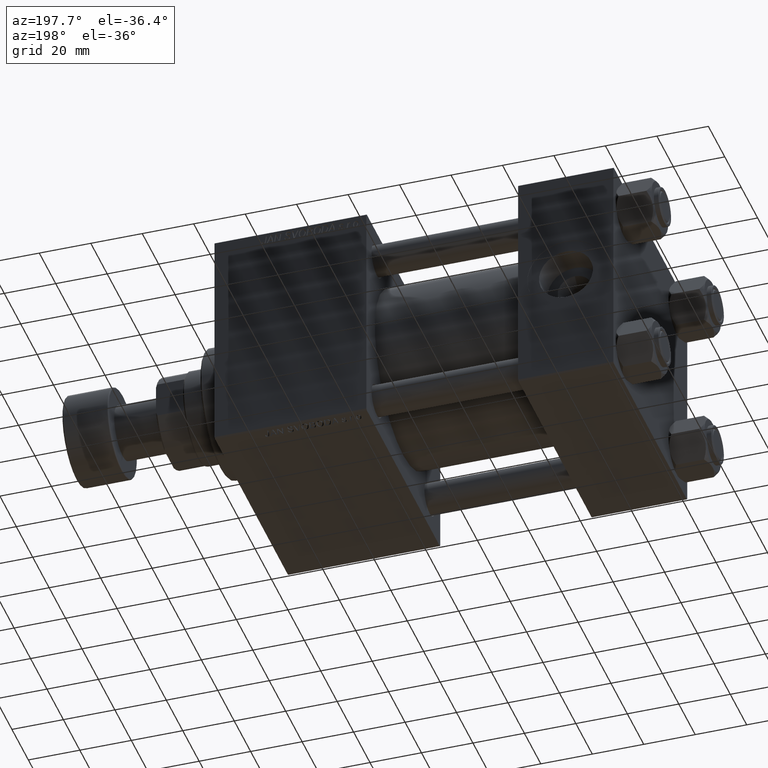
[diagram: clean part render]
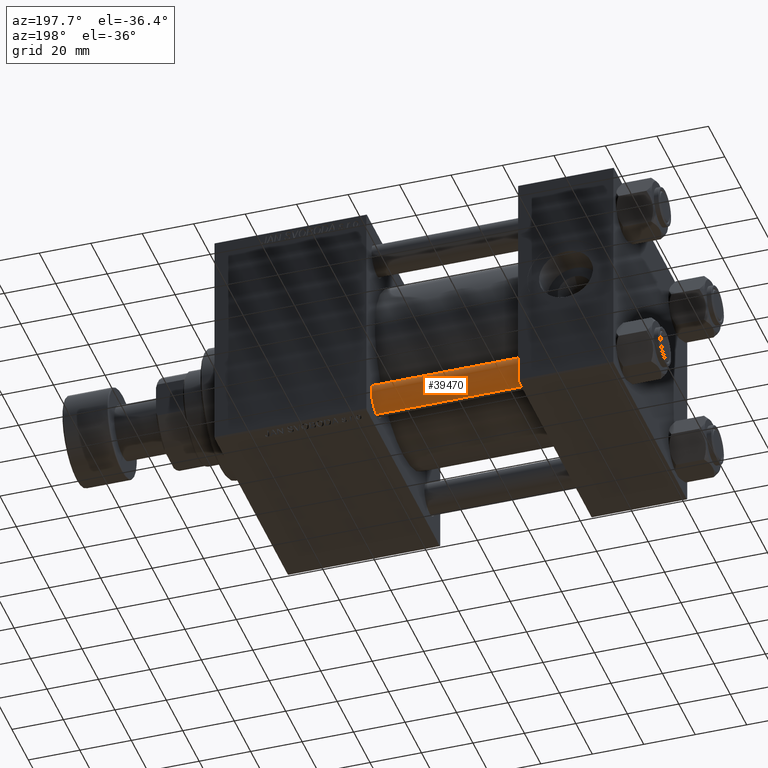
[diagram: same view with one face highlighted and labeled with its STEP entity id]
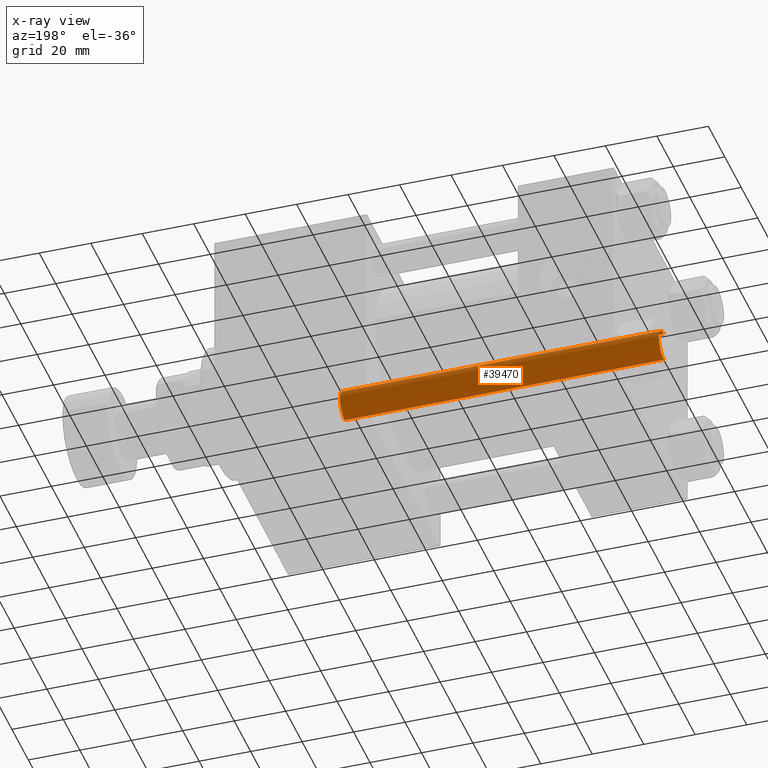
[diagram: x-ray of the same camera — body ghosted, the highlighted face saturated]
A machine part, auxiliary view. The second image highlights one B-rep face of the part: STEP entity #39470.
The next image is the same camera in x-ray: the body ghosted, the highlighted face saturated — about 0% of this face is hidden behind the body in this view.
In plain terms, the highlighted cylindrical surface (edge-blend (fillet) strip) has radius 6 mm, axis along (1, -0, -0).
Its self-contained STEP definition (entity closure, byte-faithful):
#1232 = ORIENTED_EDGE ( 'NONE', *, *, #22876, .T. ) ;
#2755 = FACE_OUTER_BOUND ( 'NONE', #5713, .T. ) ;
#3897 = ORIENTED_EDGE ( 'NONE', *, *, #37520, .F. ) ;
#4554 = DIRECTION ( 'NONE',  ( 1.000000000000000000, 0.000000000000000000, 0.000000000000000000 ) ) ;
#5615 = CARTESIAN_POINT ( 'NONE',  ( 0.000000000000000000, 0.000000000000000000, 125.0000000000000000 ) ) ;
#5713 = EDGE_LOOP ( 'NONE', ( #1232, #30730, #36453, #3897 ) ) ;
#7051 = LINE ( 'NONE', #26249, #22599 ) ;
#9323 = CIRCLE ( 'NONE', #29862, 6.000000000000000888 ) ;
#13637 = AXIS2_PLACEMENT_3D ( 'NONE', #28364, #39650, #4554 ) ;
#15945 = CARTESIAN_POINT ( 'NONE',  ( -6.000000000000000888, 0.000000000000000000, 0.4999999999999865663 ) ) ;
#21235 = DIRECTION ( 'NONE',  ( -1.000000000000000000, 0.000000000000000000, 0.000000000000000000 ) ) ;
#21677 = CARTESIAN_POINT ( 'NONE',  ( -6.000000000000000888, 0.000000000000000000, 124.5000000000000000 ) ) ;
#22599 = VECTOR ( 'NONE', #41877, 1000.000000000000000 ) ;
#22876 = EDGE_CURVE ( 'NONE', #27621, #41216, #33264, .T. ) ;
#23564 = CARTESIAN_POINT ( 'NONE',  ( 6.000000000000000888, 7.347880794884120722E-16, 124.5000000000000000 ) ) ;
#23594 = CARTESIAN_POINT ( 'NONE',  ( 6.000000000000000888, 7.347880794884120722E-16, 125.0000000000000000 ) ) ;
#25071 = CYLINDRICAL_SURFACE ( 'NONE', #38206, 6.000000000000000888 ) ;
#26249 = CARTESIAN_POINT ( 'NONE',  ( -6.000000000000000888, 0.000000000000000000, 125.0000000000000000 ) ) ;
#26913 = LINE ( 'NONE', #23594, #34228 ) ;
#27621 = VERTEX_POINT ( 'NONE', #21677 ) ;
#28364 = CARTESIAN_POINT ( 'NONE',  ( 0.000000000000000000, 0.000000000000000000, 124.5000000000000000 ) ) ;
#29171 = DIRECTION ( 'NONE',  ( -0.000000000000000000, -0.000000000000000000, -1.000000000000000000 ) ) ;
#29862 = AXIS2_PLACEMENT_3D ( 'NONE', #43425, #38819, #34473 ) ;
#30462 = EDGE_CURVE ( 'NONE', #42133, #37925, #9323, .T. ) ;
#30730 = ORIENTED_EDGE ( 'NONE', *, *, #46396, .T. ) ;
#33264 = CIRCLE ( 'NONE', #13637, 6.000000000000000888 ) ;
#34228 = VECTOR ( 'NONE', #49749, 1000.000000000000000 ) ;
#34473 = DIRECTION ( 'NONE',  ( 1.000000000000000000, 0.000000000000000000, 0.000000000000000000 ) ) ;
#36453 = ORIENTED_EDGE ( 'NONE', *, *, #30462, .T. ) ;
#37520 = EDGE_CURVE ( 'NONE', #27621, #37925, #7051, .T. ) ;
#37925 = VERTEX_POINT ( 'NONE', #15945 ) ;
#38206 = AXIS2_PLACEMENT_3D ( 'NONE', #5615, #29171, #21235 ) ;
#38819 = DIRECTION ( 'NONE',  ( -0.000000000000000000, -0.000000000000000000, 1.000000000000000000 ) ) ;
#39470 = ADVANCED_FACE ( 'NONE', ( #2755 ), #25071, .T. ) ;
#39650 = DIRECTION ( 'NONE',  ( 0.000000000000000000, 0.000000000000000000, -1.000000000000000000 ) ) ;
#40742 = CARTESIAN_POINT ( 'NONE',  ( 6.000000000000000888, 7.347880794884120722E-16, 0.4999999999999865663 ) ) ;
#41216 = VERTEX_POINT ( 'NONE', #23564 ) ;
#41877 = DIRECTION ( 'NONE',  ( -0.000000000000000000, -0.000000000000000000, -1.000000000000000000 ) ) ;
#42133 = VERTEX_POINT ( 'NONE', #40742 ) ;
#43425 = CARTESIAN_POINT ( 'NONE',  ( 0.000000000000000000, 0.000000000000000000, 0.4999999999999865663 ) ) ;
#46396 = EDGE_CURVE ( 'NONE', #41216, #42133, #26913, .T. ) ;
#49749 = DIRECTION ( 'NONE',  ( -0.000000000000000000, -0.000000000000000000, -1.000000000000000000 ) ) ;